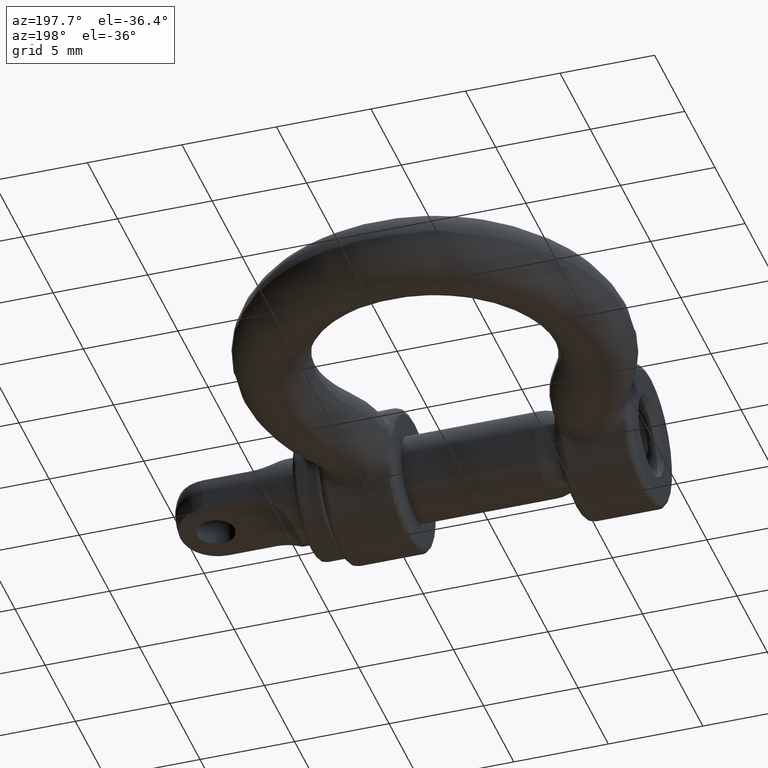
[diagram: clean part render]
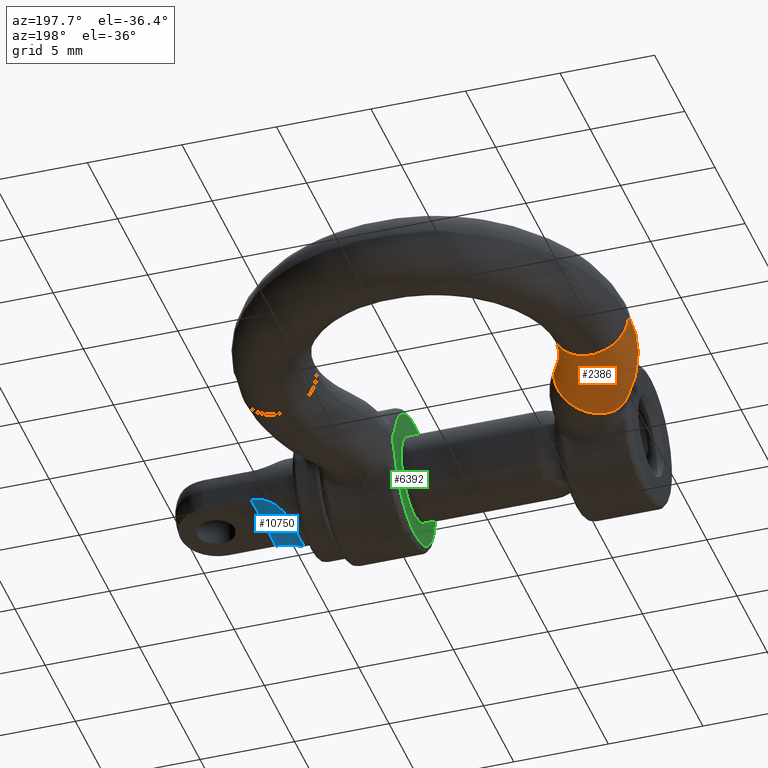
[diagram: same view with three faces highlighted in distinct colors, each labeled with its STEP entity id]
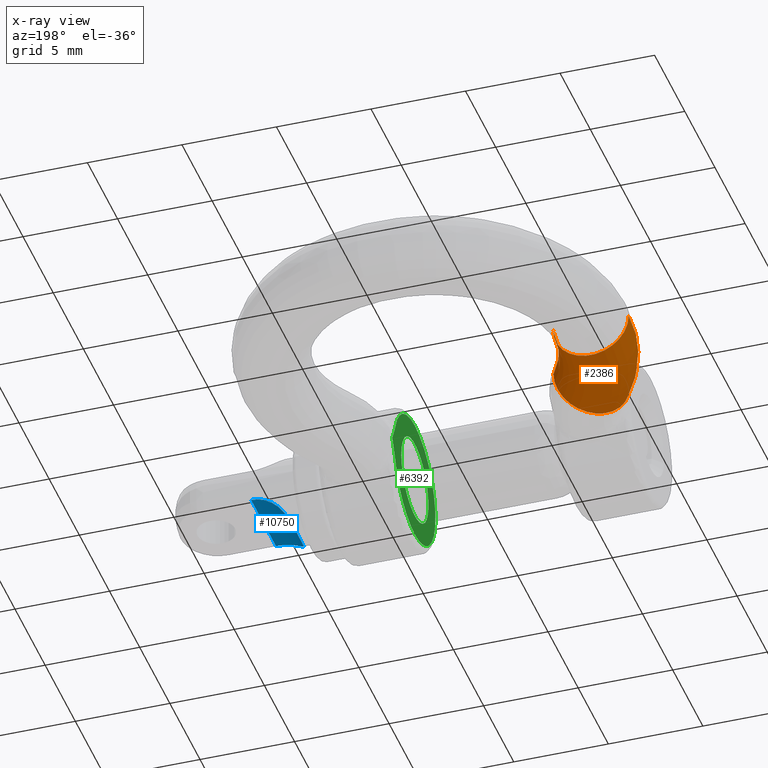
[diagram: x-ray of the same camera — body ghosted, the three highlighted faces saturated]
A machine part, auxiliary view with three faces highlighted in distinct colors.
The next image is the same camera in x-ray (body ghosted, the three faces saturated) — at least one of them is partly hidden behind the body in this view.
Their STEP definitions:

[orange] entity #2386 — the highlighted toroidal blend (fillet) surface has major radius 8.25 mm and minor (blend) radius 2 mm.
#33 = ORIENTED_EDGE ( 'NONE', *, *, #10725, .F. ) ;
#216 = DIRECTION ( 'NONE',  ( -0.0000000000000000000, -0.0000000000000000000, -1.000000000000000000 ) ) ;
#622 = CARTESIAN_POINT ( 'NONE',  ( -10.25000000000000000, 13.75000000000000200, 0.0000000000000000000 ) ) ;
#781 = AXIS2_PLACEMENT_3D ( 'NONE', #3223, #8286, #4493 ) ;
#965 = TOROIDAL_SURFACE ( 'NONE', #6078, 8.250000000000000000, 2.000000000000000400 ) ;
#1183 = VERTEX_POINT ( 'NONE', #622 ) ;
#1329 = DIRECTION ( 'NONE',  ( -0.0000000000000000000, -0.0000000000000000000, -1.000000000000000000 ) ) ;
#2386 = ADVANCED_FACE ( 'NONE', ( #6321 ), #965, .T. ) ;
#2723 = CARTESIAN_POINT ( 'NONE',  ( 0.0000000000000000000, 13.75000000000000200, 0.0000000000000000000 ) ) ;
#3223 = CARTESIAN_POINT ( 'NONE',  ( -6.783333333333333200, 9.054375559215913000, 0.0000000000000000000 ) ) ;
#3519 = CIRCLE ( 'NONE', #4507, 2.000000000000000400 ) ;
#3595 = CARTESIAN_POINT ( 'NONE',  ( -6.250000000000000000, 13.75000000000000200, 2.449293598294707400E-016 ) ) ;
#4085 = CIRCLE ( 'NONE', #781, 2.000000000000000400 ) ;
#4247 = EDGE_CURVE ( 'NONE', #1183, #9618, #3519, .T. ) ;
#4493 = DIRECTION ( 'NONE',  ( 0.0000000000000000000, 0.0000000000000000000, 1.000000000000000000 ) ) ;
#4507 = AXIS2_PLACEMENT_3D ( 'NONE', #5248, #11786, #15415 ) ;
#5248 = CARTESIAN_POINT ( 'NONE',  ( -8.250000000000000000, 13.75000000000000200, 0.0000000000000000000 ) ) ;
#5339 = DIRECTION ( 'NONE',  ( -1.000000000000000000, 0.0000000000000000000, 0.0000000000000000000 ) ) ;
#5396 = DIRECTION ( 'NONE',  ( -0.0000000000000000000, -0.0000000000000000000, -1.000000000000000000 ) ) ;
#5840 = EDGE_CURVE ( 'NONE', #10145, #7675, #4085, .T. ) ;
#6078 = AXIS2_PLACEMENT_3D ( 'NONE', #6527, #216, #11808 ) ;
#6321 = FACE_OUTER_BOUND ( 'NONE', #8531, .T. ) ;
#6527 = CARTESIAN_POINT ( 'NONE',  ( 0.0000000000000000000, 13.75000000000000200, 0.0000000000000000000 ) ) ;
#7546 = ORIENTED_EDGE ( 'NONE', *, *, #15440, .T. ) ;
#7629 = CARTESIAN_POINT ( 'NONE',  ( 0.0000000000000000000, 13.75000000000000200, 2.449293598294706900E-016 ) ) ;
#7675 = VERTEX_POINT ( 'NONE', #14485 ) ;
#8186 = DIRECTION ( 'NONE',  ( -1.000000000000000000, 0.0000000000000000000, 0.0000000000000000000 ) ) ;
#8286 = DIRECTION ( 'NONE',  ( -0.5691665988829202000, 0.8222222222222220800, 0.0000000000000000000 ) ) ;
#8531 = EDGE_LOOP ( 'NONE', ( #13432, #7546, #12787, #33 ) ) ;
#9037 = CIRCLE ( 'NONE', #16110, 6.250000000000000000 ) ;
#9618 = VERTEX_POINT ( 'NONE', #3595 ) ;
#10145 = VERTEX_POINT ( 'NONE', #10178 ) ;
#10178 = CARTESIAN_POINT ( 'NONE',  ( -5.138888888888889300, 10.19270875698175300, 2.449293598294706900E-016 ) ) ;
#10725 = EDGE_CURVE ( 'NONE', #10145, #9618, #9037, .T. ) ;
#11786 = DIRECTION ( 'NONE',  ( 0.0000000000000000000, -1.000000000000000000, 0.0000000000000000000 ) ) ;
#11808 = DIRECTION ( 'NONE',  ( -1.000000000000000000, 0.0000000000000000000, 0.0000000000000000000 ) ) ;
#12787 = ORIENTED_EDGE ( 'NONE', *, *, #4247, .T. ) ;
#13432 = ORIENTED_EDGE ( 'NONE', *, *, #5840, .T. ) ;
#13947 = AXIS2_PLACEMENT_3D ( 'NONE', #2723, #5396, #5339 ) ;
#14485 = CARTESIAN_POINT ( 'NONE',  ( -8.427777777777777100, 7.916042361450072600, 0.0000000000000000000 ) ) ;
#15415 = DIRECTION ( 'NONE',  ( 0.0000000000000000000, 0.0000000000000000000, -1.000000000000000000 ) ) ;
#15440 = EDGE_CURVE ( 'NONE', #7675, #1183, #15820, .T. ) ;
#15820 = CIRCLE ( 'NONE', #13947, 10.25000000000000000 ) ;
#16110 = AXIS2_PLACEMENT_3D ( 'NONE', #7629, #1329, #8186 ) ;

[blue] entity #10750 — the highlighted cylindrical surface (partial cylindrical patch) has radius 2 mm, axis along (0, -1, 0).
#183 = CARTESIAN_POINT ( 'NONE',  ( 8.108571968062223700, -0.1518028217366152200, -2.250000000000001300 ) ) ;
#494 = CARTESIAN_POINT ( 'NONE',  ( 8.108571968062142000, 1.589712116538406500E-014, -2.250000000000001800 ) ) ;
#584 = CARTESIAN_POINT ( 'NONE',  ( 8.113717845297344400, 0.3041401593214548300, -2.234432532565825600 ) ) ;
#585 = EDGE_LOOP ( 'NONE', ( #2440, #10464, #4374 ) ) ;
#794 = CARTESIAN_POINT ( 'NONE',  ( 8.342230495280158900, 1.387475949786003600, -1.777122982359324000 ) ) ;
#1440 = CARTESIAN_POINT ( 'NONE',  ( 8.206605888614259200, -1.017250039486039500, -2.012407007840206300 ) ) ;
#1860 = CARTESIAN_POINT ( 'NONE',  ( 9.697240498161326300, 2.054851580834699700, -0.9173219506989190900 ) ) ;
#1890 = EDGE_CURVE ( 'NONE', #13956, #8337, #15970, .T. ) ;
#2092 = LINE ( 'NONE', #9825, #8438 ) ;
#2440 = ORIENTED_EDGE ( 'NONE', *, *, #12735, .F. ) ;
#2765 = CARTESIAN_POINT ( 'NONE',  ( 8.653722177045008100, -1.752907736279614800, -1.414563637255014500 ) ) ;
#2823 = CARTESIAN_POINT ( 'NONE',  ( 8.560069930535396700, -1.676136913038042800, -1.506703288511180400 ) ) ;
#3093 = CARTESIAN_POINT ( 'NONE',  ( 8.153775354018987900, 0.7451740303720322300, -2.128255187540294600 ) ) ;
#3949 = CARTESIAN_POINT ( 'NONE',  ( 8.242912891851229800, -1.148578716174969600, -1.940032673698103500 ) ) ;
#4218 = DIRECTION ( 'NONE',  ( 0.0000000000000000000, 0.0000000000000000000, -1.000000000000000000 ) ) ;
#4353 = CARTESIAN_POINT ( 'NONE',  ( 9.403776995086840200, 2.023277903938475400, -0.9850081745484491300 ) ) ;
#4374 = ORIENTED_EDGE ( 'NONE', *, *, #1890, .F. ) ;
#4571 = CARTESIAN_POINT ( 'NONE',  ( 9.847057905305204500, 2.062159062730127200, -0.9000000000000004700 ) ) ;
#4816 = EDGE_CURVE ( 'NONE', #8337, #14361, #2092, .T. ) ;
#5058 = CYLINDRICAL_SURFACE ( 'NONE', #15580, 2.000000000000000000 ) ;
#5170 = CARTESIAN_POINT ( 'NONE',  ( 8.136028474551972400, -0.5981849205293454700, -2.174292781185306600 ) ) ;
#5283 = CARTESIAN_POINT ( 'NONE',  ( 9.695443160961703600, -2.054727750042658000, -0.9176041827549391600 ) ) ;
#5638 = CARTESIAN_POINT ( 'NONE',  ( 8.872789632378014000, 1.878991899023511500, -1.242176039124108800 ) ) ;
#6447 = CARTESIAN_POINT ( 'NONE',  ( 8.113591813311430200, -0.3018112828060322000, -2.234789530813631900 ) ) ;
#6656 = CARTESIAN_POINT ( 'NONE',  ( 9.258426295290085800, -1.998258424791214500, -1.036763533075239600 ) ) ;
#6899 = CARTESIAN_POINT ( 'NONE',  ( 8.243122414818952100, 1.149495437619473700, -1.939565890748825600 ) ) ;
#7057 = CARTESIAN_POINT ( 'NONE',  ( 8.562299282149588500, 1.678200958192132400, -1.504388328675909200 ) ) ;
#7101 = CARTESIAN_POINT ( 'NONE',  ( 8.996893815496038700, 1.927164250915722700, -1.163564550629488300 ) ) ;
#7685 = CARTESIAN_POINT ( 'NONE',  ( 8.341031426649122300, -1.385004440615081200, -1.778966706192912900 ) ) ;
#7897 = CARTESIAN_POINT ( 'NONE',  ( 10.00000000000000000, -2.062159062730127600, -0.9000000000000005800 ) ) ;
#8163 = CARTESIAN_POINT ( 'NONE',  ( 8.136161519569853300, 0.5992705567587953700, -2.173951420547987700 ) ) ;
#8337 = VERTEX_POINT ( 'NONE', #10808 ) ;
#8374 = CARTESIAN_POINT ( 'NONE',  ( 8.656101199993804200, 1.754624060357753900, -1.412411510709152600 ) ) ;
#8403 = FACE_OUTER_BOUND ( 'NONE', #585, .T. ) ;
#8438 = VECTOR ( 'NONE', #13603, 1000.000000000000000 ) ;
#9460 = CARTESIAN_POINT ( 'NONE',  ( 8.108571968062225500, 0.1517855103787281200, -2.249999999999999100 ) ) ;
#9574 = CARTESIAN_POINT ( 'NONE',  ( 8.207166930017837800, 1.019630911821900900, -2.011245206952726200 ) ) ;
#9825 = CARTESIAN_POINT ( 'NONE',  ( 10.00000000000000000, 2.062159062730127600, -0.9000000000000005800 ) ) ;
#10332 = CARTESIAN_POINT ( 'NONE',  ( 9.402216179576166500, -2.023039630999341500, -0.9855020113682029200 ) ) ;
#10464 = ORIENTED_EDGE ( 'NONE', *, *, #4816, .F. ) ;
#10698 = CARTESIAN_POINT ( 'NONE',  ( 10.00000000000000000, 2.062159062730127600, -0.9000000000000005800 ) ) ;
#10750 = ADVANCED_FACE ( 'NONE', ( #8403 ), #5058, .F. ) ;
#10808 = CARTESIAN_POINT ( 'NONE',  ( 10.00000000000000000, -2.062159062730127600, -0.9000000000000005800 ) ) ;
#11552 = CARTESIAN_POINT ( 'NONE',  ( 9.846916035032879900, -2.062159062730189300, -0.9000000000000009100 ) ) ;
#11609 = CARTESIAN_POINT ( 'NONE',  ( 8.108571968062142000, 1.589712116538406500E-014, -2.250000000000001800 ) ) ;
#12735 = EDGE_CURVE ( 'NONE', #14361, #13956, #13384, .T. ) ;
#12784 = CARTESIAN_POINT ( 'NONE',  ( 10.00000000000000000, 2.062159062730127600, -0.9000000000000005800 ) ) ;
#12855 = CARTESIAN_POINT ( 'NONE',  ( 8.994131847616445800, -1.926243055986011800, -1.165119326519558100 ) ) ;
#13384 = B_SPLINE_CURVE_WITH_KNOTS ( 'NONE', 3,
 ( #10698, #4571, #1860, #4353, #15809, #7101, #5638, #8374, #7057, #13407, #794, #6899, #9574, #3093, #8163, #584, #9460, #15856 ),
 .UNSPECIFIED., .F., .F.,
 ( 4, 2, 2, 2, 2, 2, 2, 2, 4 ),
 ( -0.004197014993399418900, -0.003744266987332775000, -0.003291518981266130600, -0.002838770975199487100, -0.002386022969132843200, -0.001933274963066199300, -0.001480526956999556200, -0.001027778950932912300, -0.0005750309448662683700 ),
 .UNSPECIFIED. ) ;
#13407 = CARTESIAN_POINT ( 'NONE',  ( 8.404162225768917700, 1.492952579625171200, -1.688382449128109900 ) ) ;
#13603 = DIRECTION ( 'NONE',  ( -0.0000000000000000000, 1.000000000000000000, -0.0000000000000000000 ) ) ;
#13956 = VERTEX_POINT ( 'NONE', #494 ) ;
#14002 = CARTESIAN_POINT ( 'NONE',  ( 8.153600896331546700, -0.7437670831160453400, -2.128706211319864000 ) ) ;
#14361 = VERTEX_POINT ( 'NONE', #12784 ) ;
#14420 = CARTESIAN_POINT ( 'NONE',  ( 10.00000000000000000, 0.0000000000000000000, -2.900000000000000800 ) ) ;
#15235 = CARTESIAN_POINT ( 'NONE',  ( 8.402432546872233800, -1.490364946937072600, -1.690680950327519100 ) ) ;
#15396 = CARTESIAN_POINT ( 'NONE',  ( 8.870147928974496700, -1.877818551377928600, -1.243974800329154200 ) ) ;
#15558 = DIRECTION ( 'NONE',  ( 0.0000000000000000000, -1.000000000000000000, 0.0000000000000000000 ) ) ;
#15580 = AXIS2_PLACEMENT_3D ( 'NONE', #14420, #15558, #4218 ) ;
#15809 = CARTESIAN_POINT ( 'NONE',  ( 9.260427367602723300, 1.998631993009475400, -1.036009010582501900 ) ) ;
#15856 = CARTESIAN_POINT ( 'NONE',  ( 8.108571968062142000, 1.589712116538406500E-014, -2.250000000000001800 ) ) ;
#15970 = B_SPLINE_CURVE_WITH_KNOTS ( 'NONE', 3,
 ( #11609, #183, #6447, #5170, #14002, #1440, #3949, #7685, #15235, #2823, #2765, #15396, #12855, #6656, #10332, #5283, #11552, #7897 ),
 .UNSPECIFIED., .F., .F.,
 ( 4, 2, 2, 2, 2, 2, 2, 2, 4 ),
 ( -0.0005750309448662685900, -0.0001222313022319201400, 0.0003305683404024283000, 0.0007833679830367768500, 0.001236167625671125200, 0.001688967268305473500, 0.002141766910939822500, 0.002594566553574170400, 0.003047366196208519200 ),
 .UNSPECIFIED. ) ;

[green] entity #6392 — the highlighted planar face has unit normal (1, 0, 0).
#8 = CARTESIAN_POINT ( 'NONE',  ( 4.250000000000000000, 7.334484638233566200, 0.3183224155764440800 ) ) ;
#298 = CARTESIAN_POINT ( 'NONE',  ( 4.250000000000000000, 6.991888064418976300, -1.024774013028132400 ) ) ;
#579 = CIRCLE ( 'NONE', #6305, 3.399999999999999900 ) ;
#738 = EDGE_CURVE ( 'NONE', #3003, #6522, #15988, .T. ) ;
#748 = CARTESIAN_POINT ( 'NONE',  ( 4.250000000000000000, 3.750000000000000000, 0.0000000000000000000 ) ) ;
#855 = DIRECTION ( 'NONE',  ( 0.0000000000000000000, 0.0000000000000000000, -1.000000000000000000 ) ) ;
#898 = VERTEX_POINT ( 'NONE', #10967 ) ;
#983 = CARTESIAN_POINT ( 'NONE',  ( 4.250000000000000000, 7.022798914936865700, 0.9365722710293354900 ) ) ;
#1039 = CARTESIAN_POINT ( 'NONE',  ( 4.250000000000000000, 7.001277945280100400, 0.9950689831357230100 ) ) ;
#1150 = CARTESIAN_POINT ( 'NONE',  ( 4.249999999999999100, 7.333017068707101200, -0.3210446931288991600 ) ) ;
#1162 = EDGE_CURVE ( 'NONE', #1817, #6635, #1170, .T. ) ;
#1170 = CIRCLE ( 'NONE', #1392, 3.399999999999999900 ) ;
#1240 = CARTESIAN_POINT ( 'NONE',  ( 4.250000000000000000, 7.001277945280097700, -0.9950689831357073500 ) ) ;
#1392 = AXIS2_PLACEMENT_3D ( 'NONE', #12213, #5929, #12061 ) ;
#1616 = AXIS2_PLACEMENT_3D ( 'NONE', #3475, #8432, #13460 ) ;
#1817 = VERTEX_POINT ( 'NONE', #13711 ) ;
#1933 = EDGE_LOOP ( 'NONE', ( #10439, #12988 ) ) ;
#2349 = EDGE_CURVE ( 'NONE', #14761, #2744, #579, .T. ) ;
#2453 = CARTESIAN_POINT ( 'NONE',  ( 4.250000000000000000, 7.011659495291609400, -0.9656664627766404800 ) ) ;
#2481 = CARTESIAN_POINT ( 'NONE',  ( 4.250000000000000000, 7.084504063437435700, -0.7754093487727804500 ) ) ;
#2487 = CIRCLE ( 'NONE', #15270, 3.399999999999999900 ) ;
#2696 = DIRECTION ( 'NONE',  ( -1.000000000000000000, -0.0000000000000000000, -0.0000000000000000000 ) ) ;
#2709 = AXIS2_PLACEMENT_3D ( 'NONE', #748, #3362, #855 ) ;
#2744 = VERTEX_POINT ( 'NONE', #13974 ) ;
#2752 = CARTESIAN_POINT ( 'NONE',  ( 4.250000000000000000, 3.750000000000000000, 0.0000000000000000000 ) ) ;
#2800 = EDGE_CURVE ( 'NONE', #6522, #3003, #12270, .T. ) ;
#3003 = VERTEX_POINT ( 'NONE', #10747 ) ;
#3170 = ORIENTED_EDGE ( 'NONE', *, *, #14085, .T. ) ;
#3191 = EDGE_LOOP ( 'NONE', ( #3170, #13863, #12331, #9590, #12151, #12293 ) ) ;
#3362 = DIRECTION ( 'NONE',  ( 1.000000000000000000, 0.0000000000000000000, 0.0000000000000000000 ) ) ;
#3475 = CARTESIAN_POINT ( 'NONE',  ( 4.250000000000000000, 3.749999999999999600, 0.0000000000000000000 ) ) ;
#3672 = CARTESIAN_POINT ( 'NONE',  ( 4.249999999999999100, 7.391145128339494400, -0.2055171291172635500 ) ) ;
#3743 = CARTESIAN_POINT ( 'NONE',  ( 4.250000000000000000, 6.991888064418976300, -1.024774013028132400 ) ) ;
#4817 = CARTESIAN_POINT ( 'NONE',  ( 4.250000000000000000, 6.991888064418976300, 1.024774013028132400 ) ) ;
#4880 = B_SPLINE_CURVE_WITH_KNOTS ( 'NONE', 3,
 ( #11516, #2453, #1240, #3743 ),
 .UNSPECIFIED., .F., .F.,
 ( 4, 4 ),
 ( 0.0000000000000000000, 9.346137154708944600E-005 ),
 .UNSPECIFIED. ) ;
#4995 = CARTESIAN_POINT ( 'NONE',  ( 4.250000000000000900, 7.292888114923927700, 0.3942862682756694300 ) ) ;
#5078 = EDGE_CURVE ( 'NONE', #2744, #1817, #2487, .T. ) ;
#5929 = DIRECTION ( 'NONE',  ( -1.000000000000000000, -0.0000000000000000000, -0.0000000000000000000 ) ) ;
#6146 = CARTESIAN_POINT ( 'NONE',  ( 4.249999999999998200, 7.392693128684274300, 0.2023374951081189100 ) ) ;
#6234 = CARTESIAN_POINT ( 'NONE',  ( 4.250000000000000000, 5.999999999999999100, 0.0000000000000000000 ) ) ;
#6305 = AXIS2_PLACEMENT_3D ( 'NONE', #2752, #7782, #14239 ) ;
#6392 = ADVANCED_FACE ( 'NONE', ( #9046, #15317 ), #13523, .F. ) ;
#6522 = VERTEX_POINT ( 'NONE', #6234 ) ;
#6635 = VERTEX_POINT ( 'NONE', #13028 ) ;
#7405 = CARTESIAN_POINT ( 'NONE',  ( 4.250000000000000000, 7.167834672294260300, -0.6238726248605254200 ) ) ;
#7570 = CARTESIAN_POINT ( 'NONE',  ( 4.250000000000000000, 7.411536520340460400, 0.1634031456240424300 ) ) ;
#7736 = EDGE_CURVE ( 'NONE', #6635, #13217, #10286, .T. ) ;
#7771 = CARTESIAN_POINT ( 'NONE',  ( 4.250000000000000000, 3.749999999999999600, 0.0000000000000000000 ) ) ;
#7782 = DIRECTION ( 'NONE',  ( -1.000000000000000000, -0.0000000000000000000, -0.0000000000000000000 ) ) ;
#8432 = DIRECTION ( 'NONE',  ( -1.000000000000000000, -0.0000000000000000000, -0.0000000000000000000 ) ) ;
#8685 = CARTESIAN_POINT ( 'NONE',  ( 4.250000000000000000, 7.168622290581194700, 0.6224238700247647400 ) ) ;
#8750 = CARTESIAN_POINT ( 'NONE',  ( 4.249999999999998200, 7.444588402392001000, 0.08327507262017157200 ) ) ;
#8865 = CARTESIAN_POINT ( 'NONE',  ( 4.249999999999999100, 7.291583280040224900, -0.3966804291153051600 ) ) ;
#9046 = FACE_OUTER_BOUND ( 'NONE', #3191, .T. ) ;
#9477 = CARTESIAN_POINT ( 'NONE',  ( 4.250000000000000000, 3.750000000000000000, 0.0000000000000000000 ) ) ;
#9590 = ORIENTED_EDGE ( 'NONE', *, *, #1162, .T. ) ;
#9701 = AXIS2_PLACEMENT_3D ( 'NONE', #7771, #2696, #15108 ) ;
#9988 = CARTESIAN_POINT ( 'NONE',  ( 4.250000000000000000, 7.022798914936865700, 0.9365722710293354900 ) ) ;
#10286 = B_SPLINE_CURVE_WITH_KNOTS ( 'NONE', 3,
 ( #4817, #1039, #16048, #983 ),
 .UNSPECIFIED., .F., .F.,
 ( 4, 4 ),
 ( 0.0000000000000000000, 9.346137154654685700E-005 ),
 .UNSPECIFIED. ) ;
#10439 = ORIENTED_EDGE ( 'NONE', *, *, #2800, .F. ) ;
#10747 = CARTESIAN_POINT ( 'NONE',  ( 4.250000000000000000, 1.499999999999999600, 2.755455298081544800E-016 ) ) ;
#10967 = CARTESIAN_POINT ( 'NONE',  ( 4.250000000000000000, 7.022798914937060200, -0.9365722710288284500 ) ) ;
#11267 = CARTESIAN_POINT ( 'NONE',  ( 4.250000000000000900, 7.084893182689257600, 0.7743930381850555600 ) ) ;
#11484 = CARTESIAN_POINT ( 'NONE',  ( 4.250000000000000000, 7.022798914936865700, 0.9365722710293354900 ) ) ;
#11516 = CARTESIAN_POINT ( 'NONE',  ( 4.250000000000000000, 7.022798914937060200, -0.9365722710288284500 ) ) ;
#12044 = DIRECTION ( 'NONE',  ( 0.0000000000000000000, 0.0000000000000000000, -1.000000000000000000 ) ) ;
#12061 = DIRECTION ( 'NONE',  ( 0.0000000000000000000, 0.0000000000000000000, -1.000000000000000000 ) ) ;
#12151 = ORIENTED_EDGE ( 'NONE', *, *, #7736, .T. ) ;
#12213 = CARTESIAN_POINT ( 'NONE',  ( 4.250000000000000000, 3.750000000000000000, 0.0000000000000000000 ) ) ;
#12270 = CIRCLE ( 'NONE', #9701, 2.250000000000000000 ) ;
#12293 = ORIENTED_EDGE ( 'NONE', *, *, #12536, .T. ) ;
#12331 = ORIENTED_EDGE ( 'NONE', *, *, #5078, .T. ) ;
#12536 = EDGE_CURVE ( 'NONE', #13217, #898, #12903, .T. ) ;
#12636 = CARTESIAN_POINT ( 'NONE',  ( 4.250000000000000900, 7.460081728621804400, 0.04162542071806762900 ) ) ;
#12903 = B_SPLINE_CURVE_WITH_KNOTS ( 'NONE', 3,
 ( #9988, #11267, #8685, #4995, #8, #6146, #7570, #8750, #12636, #14954, #15123, #16342, #3672, #1150, #8865, #7405, #2481, #16227 ),
 .UNSPECIFIED., .F., .F.,
 ( 4, 2, 2, 2, 2, 2, 2, 2, 4 ),
 ( 0.0000000000000000000, 0.0005209511917747906800, 0.0007814267876621866600, 0.0009116645856058839500, 0.001041902383549581100, 0.001172140181493278400, 0.001302377979436976100, 0.001562853575324370700, 0.002083804767099161000 ),
 .UNSPECIFIED. ) ;
#12988 = ORIENTED_EDGE ( 'NONE', *, *, #738, .F. ) ;
#13028 = CARTESIAN_POINT ( 'NONE',  ( 4.250000000000000000, 6.991888064418976300, 1.024774013028132400 ) ) ;
#13217 = VERTEX_POINT ( 'NONE', #11484 ) ;
#13460 = DIRECTION ( 'NONE',  ( 0.0000000000000000000, 0.0000000000000000000, -1.000000000000000000 ) ) ;
#13523 = PLANE ( 'NONE',  #2709 ) ;
#13711 = CARTESIAN_POINT ( 'NONE',  ( 4.250000000000000000, 3.750000000000000400, 3.399999999999999900 ) ) ;
#13863 = ORIENTED_EDGE ( 'NONE', *, *, #2349, .T. ) ;
#13974 = CARTESIAN_POINT ( 'NONE',  ( 4.250000000000000000, 3.750000000000000000, -3.399999999999999900 ) ) ;
#14085 = EDGE_CURVE ( 'NONE', #898, #14761, #4880, .T. ) ;
#14239 = DIRECTION ( 'NONE',  ( 0.0000000000000000000, 0.0000000000000000000, -1.000000000000000000 ) ) ;
#14530 = DIRECTION ( 'NONE',  ( -1.000000000000000000, -0.0000000000000000000, -0.0000000000000000000 ) ) ;
#14761 = VERTEX_POINT ( 'NONE', #298 ) ;
#14954 = CARTESIAN_POINT ( 'NONE',  ( 4.250000000000000900, 7.458990776391986300, -0.04615036384973166000 ) ) ;
#15108 = DIRECTION ( 'NONE',  ( 0.0000000000000000000, 0.0000000000000000000, -1.000000000000000000 ) ) ;
#15123 = CARTESIAN_POINT ( 'NONE',  ( 4.249999999999999100, 7.443268985587129000, -0.08689395444779472700 ) ) ;
#15270 = AXIS2_PLACEMENT_3D ( 'NONE', #9477, #14530, #12044 ) ;
#15317 = FACE_BOUND ( 'NONE', #1933, .T. ) ;
#15988 = CIRCLE ( 'NONE', #1616, 2.250000000000000000 ) ;
#16048 = CARTESIAN_POINT ( 'NONE',  ( 4.250000000000000000, 7.011659495291599600, 0.9656664627766661200 ) ) ;
#16227 = CARTESIAN_POINT ( 'NONE',  ( 4.250000000000000000, 7.022798914937060200, -0.9365722710288284500 ) ) ;
#16342 = CARTESIAN_POINT ( 'NONE',  ( 4.250000000000000000, 7.409976256878954900, -0.1667270093050960400 ) ) ;